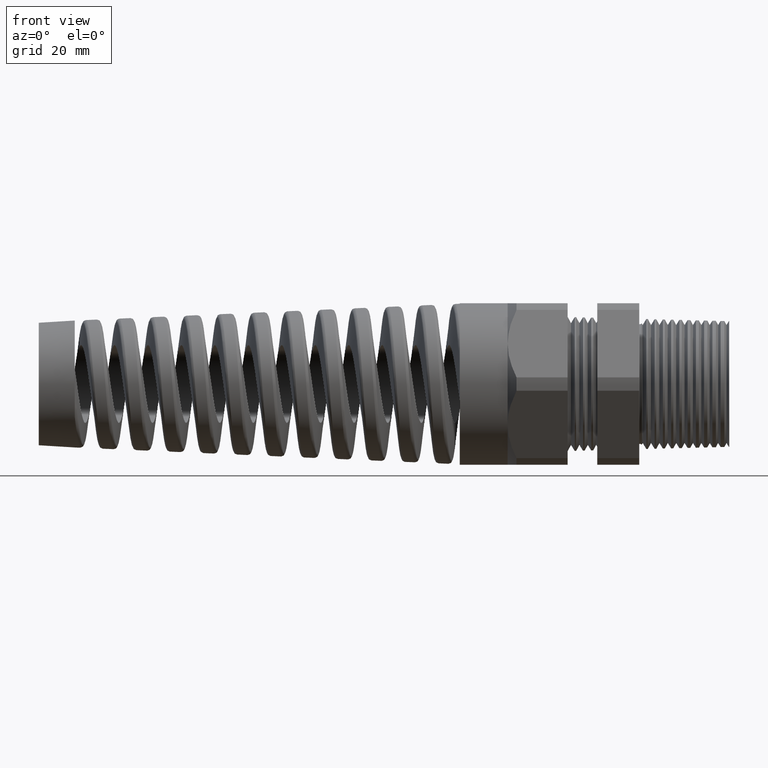
[diagram: clean part render]
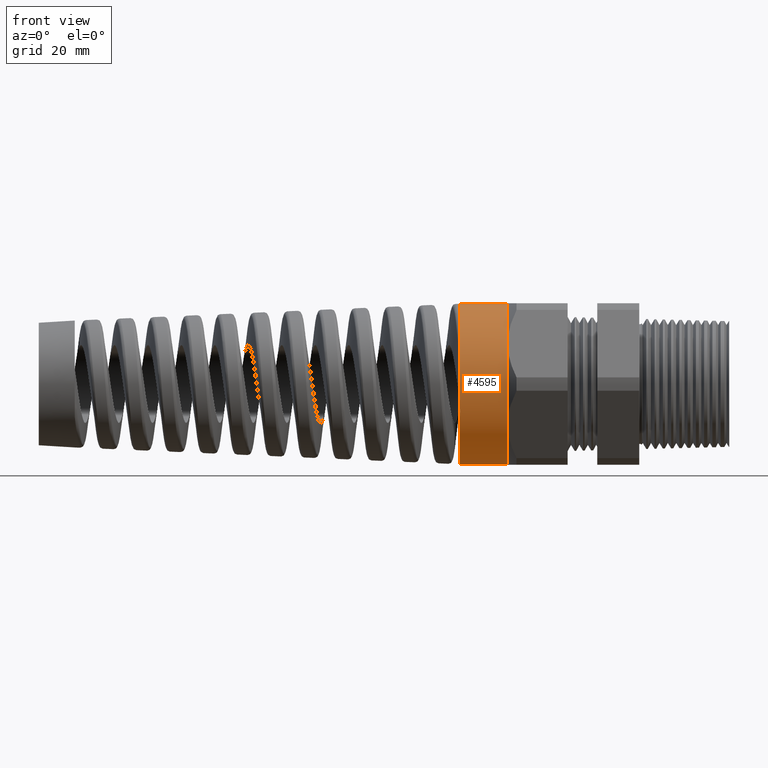
[diagram: same view with one face highlighted and labeled with its STEP entity id]
A machine part, front view. The second image highlights one B-rep face of the part: STEP entity #4595.
In plain terms, the highlighted cylindrical surface (partial cylindrical patch) has radius 13.462 mm, axis along (1, 0, 0).
Its self-contained STEP definition (entity closure, byte-faithful):
#4428 = VERTEX_POINT ( 'NONE', #18688 ) ;
#4429 = VERTEX_POINT ( 'NONE', #18687 ) ;
#4431 = EDGE_CURVE ( 'NONE', #4428, #4432, #18686, .T. ) ;
#4432 = VERTEX_POINT ( 'NONE', #18682 ) ;
#4444 = VERTEX_POINT ( 'NONE', #18738 ) ;
#4446 = EDGE_CURVE ( 'NONE', #4429, #4444, #18737, .T. ) ;
#4525 = VERTEX_POINT ( 'NONE', #18790 ) ;
#4595 = ADVANCED_FACE ( 'NONE', ( #18866 ), #19022, .T. ) ;
#4596 = EDGE_LOOP ( 'NONE', ( #4597, #4598, #4600, #4601, #4603, #4605 ) ) ;
#4597 = ORIENTED_EDGE ( 'NONE', *, *, #4431, .F. ) ;
#4598 = ORIENTED_EDGE ( 'NONE', *, *, #4599, .F. ) ;
#4599 = EDGE_CURVE ( 'NONE', #4429, #4428, #19003, .T. ) ;
#4600 = ORIENTED_EDGE ( 'NONE', *, *, #4446, .T. ) ;
#4601 = ORIENTED_EDGE ( 'NONE', *, *, #4602, .F. ) ;
#4602 = EDGE_CURVE ( 'NONE', #4525, #4444, #19098, .T. ) ;
#4603 = ORIENTED_EDGE ( 'NONE', *, *, #4604, .F. ) ;
#4604 = EDGE_CURVE ( 'NONE', #4608, #4525, #19093, .T. ) ;
#4605 = ORIENTED_EDGE ( 'NONE', *, *, #4613, .F. ) ;
#4608 = VERTEX_POINT ( 'NONE', #19183 ) ;
#4613 = EDGE_CURVE ( 'NONE', #4432, #4608, #19172, .T. ) ;
#18682 = CARTESIAN_POINT ( 'NONE',  ( -1.173779527559055200, 0.0000000000000000000, 0.5300000000000001400 ) ) ;
#18683 = DIRECTION ( 'NONE',  ( 1.000000000000000000, 0.0000000000000000000, 0.0000000000000000000 ) ) ;
#18684 = VECTOR ( 'NONE', #18683, 39.37007874015748100 ) ;
#18685 = CARTESIAN_POINT ( 'NONE',  ( 0.0000000000000000000, 6.490628035480972400E-017, 0.5300000000000000300 ) ) ;
#18686 = LINE ( 'NONE', #18685, #18684 ) ;
#18687 = CARTESIAN_POINT ( 'NONE',  ( -1.487985188310925600, 0.0000000000000000000, -0.5300000000000001400 ) ) ;
#18688 = CARTESIAN_POINT ( 'NONE',  ( -1.487985188310925600, 6.490628035480973600E-017, 0.5300000000000001400 ) ) ;
#18734 = DIRECTION ( 'NONE',  ( 1.000000000000000000, 0.0000000000000000000, 0.0000000000000000000 ) ) ;
#18735 = VECTOR ( 'NONE', #18734, 39.37007874015748100 ) ;
#18736 = CARTESIAN_POINT ( 'NONE',  ( 0.0000000000000000000, 0.0000000000000000000, -0.5300000000000000300 ) ) ;
#18737 = LINE ( 'NONE', #18736, #18735 ) ;
#18738 = CARTESIAN_POINT ( 'NONE',  ( -1.173779527559055200, 0.0000000000000000000, -0.5300000000000000300 ) ) ;
#18790 = CARTESIAN_POINT ( 'NONE',  ( -1.173779527559055200, -0.4589934640057526900, -0.2650000000000002400 ) ) ;
#18866 = FACE_OUTER_BOUND ( 'NONE', #4596, .T. ) ;
#19002 = AXIS2_PLACEMENT_3D ( 'NONE', #19023, #19100, #19099 ) ;
#19003 = CIRCLE ( 'NONE', #19002, 0.5300000000000001400 ) ;
#19004 = DIRECTION ( 'NONE',  ( 0.0000000000000000000, 0.0000000000000000000, -1.000000000000000000 ) ) ;
#19005 = DIRECTION ( 'NONE',  ( 1.000000000000000000, 0.0000000000000000000, 0.0000000000000000000 ) ) ;
#19006 = CARTESIAN_POINT ( 'NONE',  ( 0.0000000000000000000, 0.0000000000000000000, 0.0000000000000000000 ) ) ;
#19007 = AXIS2_PLACEMENT_3D ( 'NONE', #19006, #19005, #19004 ) ;
#19022 = CYLINDRICAL_SURFACE ( 'NONE', #19007, 0.5300000000000000300 ) ;
#19023 = CARTESIAN_POINT ( 'NONE',  ( -1.487985188310925600, 0.0000000000000000000, 0.0000000000000000000 ) ) ;
#19093 = CIRCLE ( 'NONE', #19188, 0.5300000000000000300 ) ;
#19094 = DIRECTION ( 'NONE',  ( 0.0000000000000000000, 0.0000000000000000000, -1.000000000000000000 ) ) ;
#19095 = DIRECTION ( 'NONE',  ( 1.000000000000000000, 0.0000000000000000000, 0.0000000000000000000 ) ) ;
#19096 = CARTESIAN_POINT ( 'NONE',  ( -1.173779527559055200, 0.0000000000000000000, 0.0000000000000000000 ) ) ;
#19097 = AXIS2_PLACEMENT_3D ( 'NONE', #19096, #19095, #19094 ) ;
#19098 = CIRCLE ( 'NONE', #19097, 0.5300000000000000300 ) ;
#19099 = DIRECTION ( 'NONE',  ( 0.0000000000000000000, 0.0000000000000000000, 1.000000000000000000 ) ) ;
#19100 = DIRECTION ( 'NONE',  ( -1.000000000000000000, 0.0000000000000000000, 0.0000000000000000000 ) ) ;
#19161 = DIRECTION ( 'NONE',  ( 0.0000000000000000000, 0.0000000000000000000, -1.000000000000000000 ) ) ;
#19162 = DIRECTION ( 'NONE',  ( 1.000000000000000000, 0.0000000000000000000, 0.0000000000000000000 ) ) ;
#19163 = CARTESIAN_POINT ( 'NONE',  ( -1.173779527559055200, 0.0000000000000000000, 0.0000000000000000000 ) ) ;
#19164 = AXIS2_PLACEMENT_3D ( 'NONE', #19163, #19162, #19161 ) ;
#19172 = CIRCLE ( 'NONE', #19164, 0.5300000000000000300 ) ;
#19183 = CARTESIAN_POINT ( 'NONE',  ( -1.173779527559055200, -0.4589934640057526900, 0.2650000000000000700 ) ) ;
#19185 = DIRECTION ( 'NONE',  ( 0.0000000000000000000, 0.0000000000000000000, -1.000000000000000000 ) ) ;
#19186 = DIRECTION ( 'NONE',  ( 1.000000000000000000, 0.0000000000000000000, 0.0000000000000000000 ) ) ;
#19187 = CARTESIAN_POINT ( 'NONE',  ( -1.173779527559055200, 0.0000000000000000000, 0.0000000000000000000 ) ) ;
#19188 = AXIS2_PLACEMENT_3D ( 'NONE', #19187, #19186, #19185 ) ;